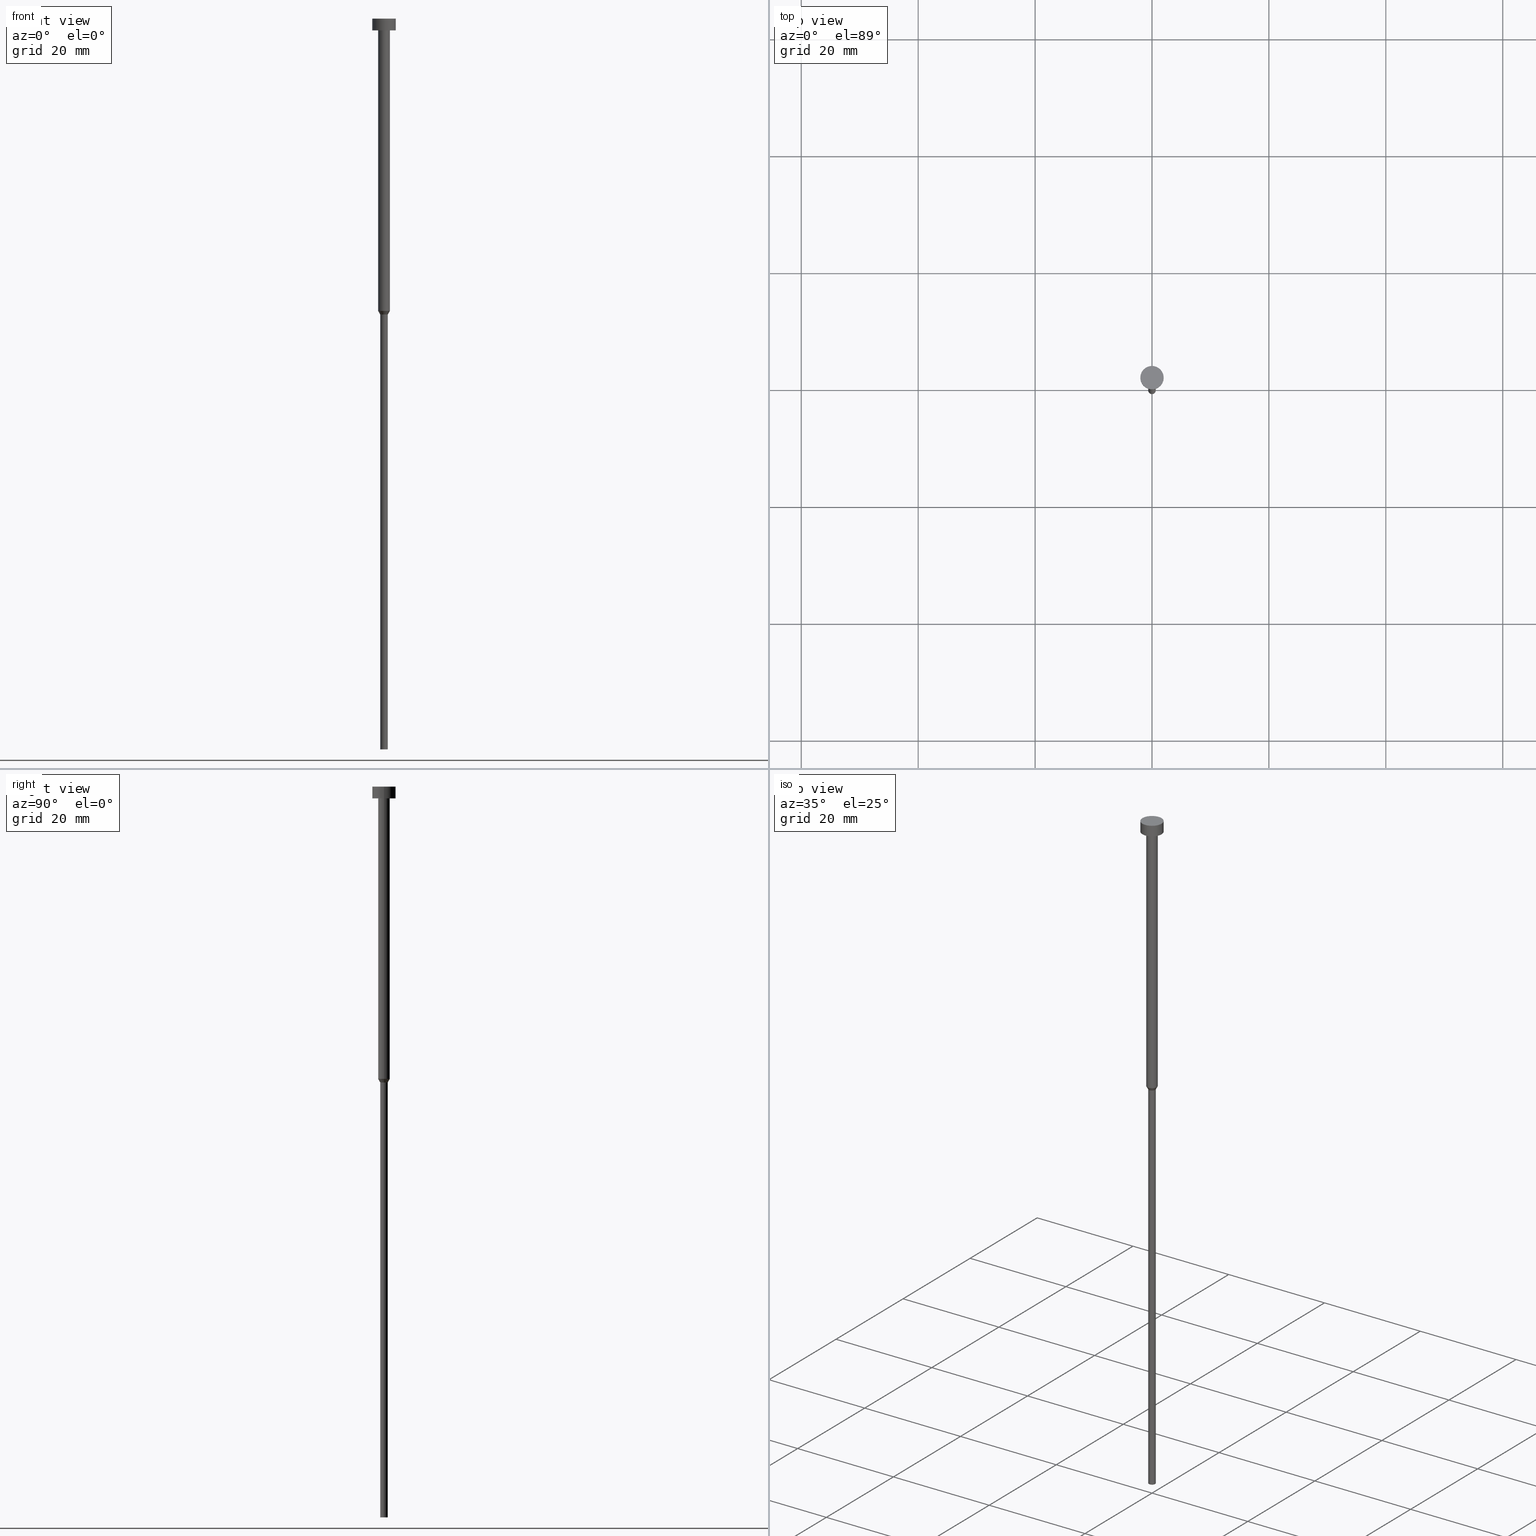
[diagram: canonical four-view strip — front | top / right | iso, engineering-drawing reading convention]
A machine part, canonical four-view strip (front | top / right | iso — engineering-drawing reading convention). The complete STEP part file that produces these views, byte-faithful:
ISO-10303-21;
HEADER;
FILE_DESCRIPTION (( 'STEP AP203' ),
    '1' );
FILE_NAME ('8b1c.STEP',
    '2023-02-13T11:52:31',
    ( '' ),
    ( '' ),
    'SwSTEP 2.0',
    'SolidWorks 2019',
    '' );
FILE_SCHEMA (( 'CONFIG_CONTROL_DESIGN' ));
ENDSEC;

DATA;
#1 = CARTESIAN_POINT ( 'NONE',  ( 0.000000000000000000, 0.000000000000000000, -50.00000000000000000 ) ) ;
#2 = ORIENTED_EDGE ( 'NONE', *, *, #255, .F. ) ;
#3 = ADVANCED_FACE ( 'NONE', ( #308 ), #192, .T. ) ;
#4 = DIRECTION ( 'NONE',  ( -0.000000000000000000, -0.000000000000000000, 1.000000000000000000 ) ) ;
#5 = ORIENTED_EDGE ( 'NONE', *, *, #187, .F. ) ;
#6 = APPROVAL_DATE_TIME ( #251, #317 ) ;
#7 = CARTESIAN_POINT ( 'NONE',  ( 0.000000000000000000, 0.000000000000000000, 0.000000000000000000 ) ) ;
#8 = CARTESIAN_POINT ( 'NONE',  ( 0.000000000000000000, 0.000000000000000000, -50.00000000000000000 ) ) ;
#9 = ORIENTED_EDGE ( 'NONE', *, *, #182, .T. ) ;
#10 = CIRCLE ( 'NONE', #241, 2.000000000000000000 ) ;
#11 = ADVANCED_FACE ( 'NONE', ( #107 ), #111, .T. ) ;
#12 = EDGE_LOOP ( 'NONE', ( #85, #35, #62, #310 ) ) ;
#13 = VECTOR ( 'NONE', #336, 1000.000000000000000 ) ;
#14 = DIRECTION ( 'NONE',  ( 1.000000000000000000, 0.000000000000000000, 0.000000000000000000 ) ) ;
#15 = CARTESIAN_POINT ( 'NONE',  ( 0.6500000000000000222, 0.000000000000000000, 0.000000000000000000 ) ) ;
#16 = CIRCLE ( 'NONE', #235, 0.6500000000000000222 ) ;
#17 = EDGE_CURVE ( 'NONE', #224, #86, #139, .T. ) ;
#18 = MECHANICAL_CONTEXT ( 'NONE', #302, 'mechanical' ) ;
#19 = DIRECTION ( 'NONE',  ( 1.000000000000000000, 0.000000000000000000, 0.000000000000000000 ) ) ;
#20 = DATE_AND_TIME ( #210, #330 ) ;
#21 = DIRECTION ( 'NONE',  ( 1.000000000000000000, 0.000000000000000000, 0.000000000000000000 ) ) ;
#22 = AXIS2_PLACEMENT_3D ( 'NONE', #1, #268, #94 ) ;
#23 = DIRECTION ( 'NONE',  ( 1.000000000000000000, 0.000000000000000000, 0.000000000000000000 ) ) ;
#24 = DIRECTION ( 'NONE',  ( -0.000000000000000000, -0.000000000000000000, 1.000000000000000000 ) ) ;
#25 = EDGE_CURVE ( 'NONE', #173, #57, #109, .T. ) ;
#26 = DIRECTION ( 'NONE',  ( -0.000000000000000000, -0.000000000000000000, 1.000000000000000000 ) ) ;
#27 = PERSON_AND_ORGANIZATION_ROLE ( 'design_supplier' ) ;
#28 = AXIS2_PLACEMENT_3D ( 'NONE', #244, #304, #78 ) ;
#29 = PERSON_AND_ORGANIZATION ( #342, #67 ) ;
#30 = UNCERTAINTY_MEASURE_WITH_UNIT (LENGTH_MEASURE( 1.000000000000000082E-05 ), #125, 'distance_accuracy_value', 'NONE');
#31 = ORIENTED_EDGE ( 'NONE', *, *, #36, .F. ) ;
#32 = PERSON_AND_ORGANIZATION ( #342, #67 ) ;
#33 = DIRECTION ( 'NONE',  ( 0.000000000000000000, 0.000000000000000000, -1.000000000000000000 ) ) ;
#34 = ORIENTED_EDGE ( 'NONE', *, *, #328, .T. ) ;
#35 = ORIENTED_EDGE ( 'NONE', *, *, #193, .T. ) ;
#36 = EDGE_CURVE ( 'NONE', #141, #224, #68, .T. ) ;
#37 = AXIS2_PLACEMENT_3D ( 'NONE', #189, #261, #21 ) ;
#38 = APPROVAL_PERSON_ORGANIZATION ( #29, #317, #222 ) ;
#39 = ORIENTED_EDGE ( 'NONE', *, *, #88, .T. ) ;
#40 = EDGE_LOOP ( 'NONE', ( #84, #114, #245, #124 ) ) ;
#41 = AXIS2_PLACEMENT_3D ( 'NONE', #8, #118, #42 ) ;
#42 = DIRECTION ( 'NONE',  ( 1.000000000000000000, 0.000000000000000000, 0.000000000000000000 ) ) ;
#43 = VECTOR ( 'NONE', #296, 1000.000000000000000 ) ;
#44 = EDGE_CURVE ( 'NONE', #137, #327, #77, .T. ) ;
#45 = CARTESIAN_POINT ( 'NONE',  ( 0.000000000000000000, 0.000000000000000000, -125.0000000000000000 ) ) ;
#46 = AXIS2_PLACEMENT_3D ( 'NONE', #72, #160, #321 ) ;
#47 = PERSON_AND_ORGANIZATION ( #342, #67 ) ;
#48 = DIRECTION ( 'NONE',  ( -0.000000000000000000, -0.000000000000000000, 1.000000000000000000 ) ) ;
#49 = CC_DESIGN_PERSON_AND_ORGANIZATION_ASSIGNMENT ( #135, #99, ( #303 ) ) ;
#50 = CARTESIAN_POINT ( 'NONE',  ( 1.000000000000003109, 0.000000000000000000, -50.00000000000000000 ) ) ;
#51 = PERSON_AND_ORGANIZATION_ROLE ( 'creator' ) ;
#52 = CARTESIAN_POINT ( 'NONE',  ( 2.000000000000000000, 0.000000000000000000, -2.449293598294705921E-16 ) ) ;
#53 = APPROVAL_ROLE ( '' ) ;
#54 = AXIS2_PLACEMENT_3D ( 'NONE', #45, #207, #14 ) ;
#55 = ORIENTED_EDGE ( 'NONE', *, *, #44, .T. ) ;
#56 = CARTESIAN_POINT ( 'NONE',  ( 0.000000000000000000, 0.000000000000000000, 0.000000000000000000 ) ) ;
#57 = VERTEX_POINT ( 'NONE', #177 ) ;
#58 = PLANE ( 'NONE',  #28 ) ;
#59 = EDGE_LOOP ( 'NONE', ( #90, #227, #175, #148 ) ) ;
#60 = CIRCLE ( 'NONE', #226, 1.000000000000003109 ) ;
#61 = FACE_OUTER_BOUND ( 'NONE', #82, .T. ) ;
#62 = ORIENTED_EDGE ( 'NONE', *, *, #88, .F. ) ;
#63 = CARTESIAN_POINT ( 'NONE',  ( 0.000000000000000000, 0.000000000000000000, -1.224646799147352961E-16 ) ) ;
#64 = DIRECTION ( 'NONE',  ( 1.000000000000000000, 0.000000000000000000, 0.000000000000000000 ) ) ;
#65 = ADVANCED_FACE ( 'NONE', ( #287 ), #289, .T. ) ;
#66 = CARTESIAN_POINT ( 'NONE',  ( 0.000000000000000000, 0.000000000000000000, -50.60621778264911086 ) ) ;
#67 = ORGANIZATION ( 'NEUR�EN�', 'NEUR�EN�', '' ) ;
#68 = LINE ( 'NONE', #15, #13 ) ;
#69 = DESIGN_CONTEXT ( 'detailed design', #278, 'design' ) ;
#70 = ADVANCED_FACE ( 'NONE', ( #155 ), #239, .T. ) ;
#71 = DIRECTION ( 'NONE',  ( 1.000000000000000000, 0.000000000000000000, 0.000000000000000000 ) ) ;
#72 = CARTESIAN_POINT ( 'NONE',  ( 0.000000000000000000, 0.000000000000000000, -2.000000000000000444 ) ) ;
#73 = APPROVAL_STATUS ( 'not_yet_approved' ) ;
#74 = FACE_OUTER_BOUND ( 'NONE', #59, .T. ) ;
#75 = EDGE_CURVE ( 'NONE', #332, #327, #340, .T. ) ;
#76 = COORDINATED_UNIVERSAL_TIME_OFFSET ( 1, 0, .AHEAD. ) ;
#77 = CIRCLE ( 'NONE', #297, 2.000000000000000000 ) ;
#78 = DIRECTION ( 'NONE',  ( -1.000000000000000000, 0.000000000000000000, -0.000000000000000000 ) ) ;
#79 = EDGE_LOOP ( 'NONE', ( #34, #9, #176, #31 ) ) ;
#80 = FACE_OUTER_BOUND ( 'NONE', #326, .T. ) ;
#81 = AXIS2_PLACEMENT_3D ( 'NONE', #212, #48, #232 ) ;
#82 = EDGE_LOOP ( 'NONE', ( #201, #168 ) ) ;
#83 = DIRECTION ( 'NONE',  ( -0.000000000000000000, -0.000000000000000000, 1.000000000000000000 ) ) ;
#84 = ORIENTED_EDGE ( 'NONE', *, *, #193, .F. ) ;
#85 = ORIENTED_EDGE ( 'NONE', *, *, #17, .T. ) ;
#86 = VERTEX_POINT ( 'NONE', #318 ) ;
#87 = CYLINDRICAL_SURFACE ( 'NONE', #325, 0.6500000000000000222 ) ;
#88 = EDGE_CURVE ( 'NONE', #57, #173, #60, .T. ) ;
#89 = APPROVAL_STATUS ( 'not_yet_approved' ) ;
#90 = ORIENTED_EDGE ( 'NONE', *, *, #187, .T. ) ;
#91 = CARTESIAN_POINT ( 'NONE',  ( 2.000000000000000000, 0.000000000000000000, -2.000000000000000444 ) ) ;
#92 = ORIENTED_EDGE ( 'NONE', *, *, #102, .T. ) ;
#93 = EDGE_CURVE ( 'NONE', #57, #350, #129, .T. ) ;
#94 = DIRECTION ( 'NONE',  ( 1.000000000000000000, 0.000000000000000000, 0.000000000000000000 ) ) ;
#95 = DIRECTION ( 'NONE',  ( -0.000000000000000000, -0.000000000000000000, 1.000000000000000000 ) ) ;
#96 = FACE_OUTER_BOUND ( 'NONE', #79, .T. ) ;
#97 = DIRECTION ( 'NONE',  ( 1.000000000000000000, 0.000000000000000000, 0.000000000000000000 ) ) ;
#98 = DIRECTION ( 'NONE',  ( 0.000000000000000000, 0.000000000000000000, 1.000000000000000000 ) ) ;
#99 = PERSON_AND_ORGANIZATION_ROLE ( 'creator' ) ;
#100 = CARTESIAN_POINT ( 'NONE',  ( -0.6500000000000000222, 7.960204194457795477E-17, -125.0000000000000000 ) ) ;
#101 = DIRECTION ( 'NONE',  ( -0.000000000000000000, -0.000000000000000000, 1.000000000000000000 ) ) ;
#102 = EDGE_CURVE ( 'NONE', #353, #137, #211, .T. ) ;
#103 = AXIS2_PLACEMENT_3D ( 'NONE', #56, #349, #142 ) ;
#104 = CARTESIAN_POINT ( 'NONE',  ( -1.000000000000003109, 1.224646799147356905E-16, -50.00000000000000000 ) ) ;
#105 = SECURITY_CLASSIFICATION ( '', '', #133 ) ;
#106 = DIRECTION ( 'NONE',  ( 1.000000000000000000, 0.000000000000000000, 0.000000000000000000 ) ) ;
#107 = FACE_OUTER_BOUND ( 'NONE', #301, .T. ) ;
#108 = APPROVAL_ROLE ( '' ) ;
#109 = CIRCLE ( 'NONE', #152, 1.000000000000003109 ) ;
#110 = CARTESIAN_POINT ( 'NONE',  ( 0.000000000000000000, 0.000000000000000000, -2.000000000000000444 ) ) ;
#111 = CYLINDRICAL_SURFACE ( 'NONE', #313, 1.000000000000003331 ) ;
#112 = APPROVAL_DATE_TIME ( #188, #276 ) ;
#113 = CARTESIAN_POINT ( 'NONE',  ( 0.000000000000000000, 0.000000000000000000, -2.449293598294705921E-16 ) ) ;
#114 = ORIENTED_EDGE ( 'NONE', *, *, #161, .T. ) ;
#115 = COORDINATED_UNIVERSAL_TIME_OFFSET ( 1, 0, .AHEAD. ) ;
#116 = VERTEX_POINT ( 'NONE', #100 ) ;
#117 = CARTESIAN_POINT ( 'NONE',  ( -1.000000000000003553, 1.224646799147357398E-16, -2.000000000000000444 ) ) ;
#118 = DIRECTION ( 'NONE',  ( -0.000000000000000000, -0.000000000000000000, 1.000000000000000000 ) ) ;
#119 = AXIS2_PLACEMENT_3D ( 'NONE', #110, #4, #171 ) ;
#120 = ADVANCED_BREP_SHAPE_REPRESENTATION ( '8b1c', ( #121, #254 ), #320 ) ;
#121 = MANIFOLD_SOLID_BREP ( 'Rotovat1', #351 ) ;
#122 = DIRECTION ( 'NONE',  ( -0.000000000000000000, -0.000000000000000000, 1.000000000000000000 ) ) ;
#123 = ORIENTED_EDGE ( 'NONE', *, *, #93, .F. ) ;
#124 = ORIENTED_EDGE ( 'NONE', *, *, #25, .F. ) ;
#125 =( LENGTH_UNIT ( ) NAMED_UNIT ( * ) SI_UNIT ( .MILLI., .METRE. ) );
#126 = CARTESIAN_POINT ( 'NONE',  ( 0.000000000000000000, 0.000000000000000000, 0.000000000000000000 ) ) ;
#127 =( NAMED_UNIT ( * ) SI_UNIT ( $, .STERADIAN. ) SOLID_ANGLE_UNIT ( ) );
#128 = CARTESIAN_POINT ( 'NONE',  ( 0.000000000000000000, 0.000000000000000000, 0.000000000000000000 ) ) ;
#129 = LINE ( 'NONE', #158, #286 ) ;
#130 = DIRECTION ( 'NONE',  ( 1.000000000000000000, 0.000000000000000000, 0.000000000000000000 ) ) ;
#131 = LINE ( 'NONE', #236, #228 ) ;
#132 = DIRECTION ( 'NONE',  ( -0.000000000000000000, -0.000000000000000000, 1.000000000000000000 ) ) ;
#133 = SECURITY_CLASSIFICATION_LEVEL ( 'unclassified' ) ;
#134 = CC_DESIGN_APPROVAL ( #237, ( #303 ) ) ;
#135 = PERSON_AND_ORGANIZATION ( #342, #67 ) ;
#136 = CARTESIAN_POINT ( 'NONE',  ( 0.6500000000000000222, 0.000000000000000000, -50.60621778264911086 ) ) ;
#137 = VERTEX_POINT ( 'NONE', #52 ) ;
#138 = COORDINATED_UNIVERSAL_TIME_OFFSET ( 1, 0, .AHEAD. ) ;
#139 = CIRCLE ( 'NONE', #164, 0.6500000000000000222 ) ;
#140 = DIRECTION ( 'NONE',  ( 1.000000000000000000, 0.000000000000000000, 0.000000000000000000 ) ) ;
#141 = VERTEX_POINT ( 'NONE', #292 ) ;
#142 = DIRECTION ( 'NONE',  ( 1.000000000000000000, 0.000000000000000000, 0.000000000000000000 ) ) ;
#143 = CIRCLE ( 'NONE', #46, 2.000000000000000000 ) ;
#144 = ORIENTED_EDGE ( 'NONE', *, *, #25, .T. ) ;
#145 = LOCAL_TIME ( 12, 52, 31.00000000000000000, #76 ) ;
#146 = LINE ( 'NONE', #194, #205 ) ;
#147 = ORIENTED_EDGE ( 'NONE', *, *, #283, .F. ) ;
#148 = ORIENTED_EDGE ( 'NONE', *, *, #102, .F. ) ;
#149 = CIRCLE ( 'NONE', #167, 0.6500000000000000222 ) ;
#150 = CC_DESIGN_APPROVAL ( #276, ( #183 ) ) ;
#151 = DIRECTION ( 'NONE',  ( -0.000000000000000000, -0.000000000000000000, 1.000000000000000000 ) ) ;
#152 = AXIS2_PLACEMENT_3D ( 'NONE', #178, #181, #284 ) ;
#153 = CONICAL_SURFACE ( 'NONE', #22, 1.000000000000003109, 0.5235987755982995928 ) ;
#154 = CALENDAR_DATE ( 2023, 13, 2 ) ;
#155 = FACE_OUTER_BOUND ( 'NONE', #40, .T. ) ;
#156 = EDGE_CURVE ( 'NONE', #350, #329, #269, .T. ) ;
#157 = PERSON_AND_ORGANIZATION_ROLE ( 'design_owner' ) ;
#158 = CARTESIAN_POINT ( 'NONE',  ( 1.000000000000003331, 0.000000000000000000, 0.000000000000000000 ) ) ;
#159 = CARTESIAN_POINT ( 'NONE',  ( 0.000000000000000000, 0.000000000000000000, -2.000000000000000444 ) ) ;
#160 = DIRECTION ( 'NONE',  ( -0.000000000000000000, -0.000000000000000000, 1.000000000000000000 ) ) ;
#161 = EDGE_CURVE ( 'NONE', #86, #224, #149, .T. ) ;
#162 = DIRECTION ( 'NONE',  ( -0.000000000000000000, -0.000000000000000000, 1.000000000000000000 ) ) ;
#163 = PERSON_AND_ORGANIZATION ( #342, #67 ) ;
#164 = AXIS2_PLACEMENT_3D ( 'NONE', #66, #95, #97 ) ;
#165 = CARTESIAN_POINT ( 'NONE',  ( 0.000000000000000000, 0.000000000000000000, -125.0000000000000000 ) ) ;
#166 = DATE_AND_TIME ( #190, #145 ) ;
#167 = AXIS2_PLACEMENT_3D ( 'NONE', #344, #24, #130 ) ;
#168 = ORIENTED_EDGE ( 'NONE', *, *, #208, .F. ) ;
#169 = ADVANCED_FACE ( 'NONE', ( #74 ), #184, .T. ) ;
#170 = ORIENTED_EDGE ( 'NONE', *, *, #75, .F. ) ;
#171 = DIRECTION ( 'NONE',  ( 1.000000000000000000, 0.000000000000000000, 0.000000000000000000 ) ) ;
#172 = CC_DESIGN_PERSON_AND_ORGANIZATION_ASSIGNMENT ( #346, #216, ( #105 ) ) ;
#173 = VERTEX_POINT ( 'NONE', #104 ) ;
#174 = DIRECTION ( 'NONE',  ( -1.000000000000000000, 0.000000000000000000, -0.000000000000000000 ) ) ;
#175 = ORIENTED_EDGE ( 'NONE', *, *, #44, .F. ) ;
#176 = ORIENTED_EDGE ( 'NONE', *, *, #17, .F. ) ;
#177 = CARTESIAN_POINT ( 'NONE',  ( 1.000000000000003109, 0.000000000000000000, -50.00000000000000000 ) ) ;
#178 = CARTESIAN_POINT ( 'NONE',  ( 0.000000000000000000, 0.000000000000000000, -50.00000000000000000 ) ) ;
#179 = LOCAL_TIME ( 12, 52, 31.00000000000000000, #115 ) ;
#180 = VECTOR ( 'NONE', #132, 1000.000000000000000 ) ;
#181 = DIRECTION ( 'NONE',  ( -0.000000000000000000, -0.000000000000000000, 1.000000000000000000 ) ) ;
#182 = EDGE_CURVE ( 'NONE', #116, #86, #234, .T. ) ;
#183 = PRODUCT_DEFINITION_FORMATION_WITH_SPECIFIED_SOURCE ( 'LIBOVOLN�', '', #186, .NOT_KNOWN. ) ;
#184 = CYLINDRICAL_SURFACE ( 'NONE', #81, 2.000000000000000000 ) ;
#185 = CARTESIAN_POINT ( 'NONE',  ( 0.000000000000000000, 0.000000000000000000, -50.00000000000000000 ) ) ;
#186 = PRODUCT ( '8b1c', '8b1c', '', ( #18 ) ) ;
#187 = EDGE_CURVE ( 'NONE', #353, #332, #10, .T. ) ;
#188 = DATE_AND_TIME ( #243, #280 ) ;
#189 = CARTESIAN_POINT ( 'NONE',  ( 0.000000000000000000, 0.000000000000000000, -2.000000000000000444 ) ) ;
#190 = CALENDAR_DATE ( 2023, 13, 2 ) ;
#191 = FACE_OUTER_BOUND ( 'NONE', #12, .T. ) ;
#192 = PLANE ( 'NONE',  #337 ) ;
#193 = EDGE_CURVE ( 'NONE', #86, #173, #131, .T. ) ;
#194 = CARTESIAN_POINT ( 'NONE',  ( -1.000000000000003331, 1.224646799147357151E-16, 0.000000000000000000 ) ) ;
#195 = ORIENTED_EDGE ( 'NONE', *, *, #93, .T. ) ;
#196 = DIRECTION ( 'NONE',  ( -0.000000000000000000, -0.000000000000000000, 1.000000000000000000 ) ) ;
#197 = ORIENTED_EDGE ( 'NONE', *, *, #199, .F. ) ;
#198 = CYLINDRICAL_SURFACE ( 'NONE', #355, 0.6500000000000000222 ) ;
#199 = EDGE_CURVE ( 'NONE', #332, #353, #143, .T. ) ;
#200 = ORIENTED_EDGE ( 'NONE', *, *, #208, .T. ) ;
#201 = ORIENTED_EDGE ( 'NONE', *, *, #328, .F. ) ;
#202 = DIRECTION ( 'NONE',  ( 1.000000000000000000, 0.000000000000000000, 0.000000000000000000 ) ) ;
#203 = SHAPE_DEFINITION_REPRESENTATION ( #215, #120 ) ;
#204 = EDGE_CURVE ( 'NONE', #224, #57, #265, .T. ) ;
#205 = VECTOR ( 'NONE', #196, 1000.000000000000000 ) ;
#206 = CC_DESIGN_DATE_AND_TIME_ASSIGNMENT ( #166, #270, ( #105 ) ) ;
#207 = DIRECTION ( 'NONE',  ( -0.000000000000000000, -0.000000000000000000, 1.000000000000000000 ) ) ;
#208 = EDGE_CURVE ( 'NONE', #116, #141, #16, .T. ) ;
#209 = PERSON_AND_ORGANIZATION ( #342, #67 ) ;
#210 = CALENDAR_DATE ( 2023, 13, 2 ) ;
#211 = LINE ( 'NONE', #240, #300 ) ;
#212 = CARTESIAN_POINT ( 'NONE',  ( 0.000000000000000000, 0.000000000000000000, 0.000000000000000000 ) ) ;
#213 = CIRCLE ( 'NONE', #54, 0.6500000000000000222 ) ;
#214 = CARTESIAN_POINT ( 'NONE',  ( -0.6500000000000000222, 7.960204194457795477E-17, 0.000000000000000000 ) ) ;
#215 = PRODUCT_DEFINITION_SHAPE ( 'NONE', 'NONE',  #303 ) ;
#216 = PERSON_AND_ORGANIZATION_ROLE ( 'classification_officer' ) ;
#217 = PLANE ( 'NONE',  #290 ) ;
#218 = EDGE_CURVE ( 'NONE', #327, #137, #279, .T. ) ;
#219 = ORIENTED_EDGE ( 'NONE', *, *, #255, .T. ) ;
#220 = COORDINATED_UNIVERSAL_TIME_OFFSET ( 1, 0, .AHEAD. ) ;
#221 = EDGE_LOOP ( 'NONE', ( #170, #250, #92, #274 ) ) ;
#222 = APPROVAL_ROLE ( '' ) ;
#223 = ORIENTED_EDGE ( 'NONE', *, *, #36, .T. ) ;
#224 = VERTEX_POINT ( 'NONE', #136 ) ;
#225 = CALENDAR_DATE ( 2023, 13, 2 ) ;
#226 = AXIS2_PLACEMENT_3D ( 'NONE', #185, #291, #238 ) ;
#227 = ORIENTED_EDGE ( 'NONE', *, *, #75, .T. ) ;
#228 = VECTOR ( 'NONE', #341, 1000.000000000000000 ) ;
#229 = DIRECTION ( 'NONE',  ( -0.000000000000000000, -0.000000000000000000, 1.000000000000000000 ) ) ;
#230 = ORIENTED_EDGE ( 'NONE', *, *, #218, .T. ) ;
#231 = ADVANCED_FACE ( 'NONE', ( #80 ), #198, .T. ) ;
#232 = DIRECTION ( 'NONE',  ( 1.000000000000000000, 0.000000000000000000, 0.000000000000000000 ) ) ;
#233 = CARTESIAN_POINT ( 'NONE',  ( 0.000000000000000000, 0.000000000000000000, 0.000000000000000000 ) ) ;
#234 = LINE ( 'NONE', #214, #293 ) ;
#235 = AXIS2_PLACEMENT_3D ( 'NONE', #260, #162, #19 ) ;
#236 = CARTESIAN_POINT ( 'NONE',  ( -1.000000000000003109, 1.224646799147356905E-16, -50.00000000000000000 ) ) ;
#237 = APPROVAL ( #348, 'NEUR�EN�' ) ;
#238 = DIRECTION ( 'NONE',  ( 1.000000000000000000, 0.000000000000000000, 0.000000000000000000 ) ) ;
#239 = CONICAL_SURFACE ( 'NONE', #41, 1.000000000000003109, 0.5235987755982995928 ) ;
#240 = CARTESIAN_POINT ( 'NONE',  ( 2.000000000000000000, 0.000000000000000000, 0.000000000000000000 ) ) ;
#241 = AXIS2_PLACEMENT_3D ( 'NONE', #159, #262, #23 ) ;
#242 = EDGE_LOOP ( 'NONE', ( #5, #197 ) ) ;
#243 = CALENDAR_DATE ( 2023, 13, 2 ) ;
#244 = CARTESIAN_POINT ( 'NONE',  ( 0.000000000000000000, -2.000000000000000000, -2.000000000000000444 ) ) ;
#245 = ORIENTED_EDGE ( 'NONE', *, *, #204, .T. ) ;
#246 = CIRCLE ( 'NONE', #119, 1.000000000000003553 ) ;
#247 = ORIENTED_EDGE ( 'NONE', *, *, #156, .T. ) ;
#248 = ADVANCED_FACE ( 'NONE', ( #61 ), #217, .T. ) ;
#249 = FACE_OUTER_BOUND ( 'NONE', #277, .T. ) ;
#250 = ORIENTED_EDGE ( 'NONE', *, *, #199, .T. ) ;
#251 = DATE_AND_TIME ( #225, #179 ) ;
#252 = CARTESIAN_POINT ( 'NONE',  ( -2.000000000000000000, 2.449293598294706414E-16, -2.449293598294705921E-16 ) ) ;
#253 = DIRECTION ( 'NONE',  ( 1.000000000000000000, 0.000000000000000000, 0.000000000000000000 ) ) ;
#254 = AXIS2_PLACEMENT_3D ( 'NONE', #233, #98, #298 ) ;
#255 = EDGE_CURVE ( 'NONE', #173, #329, #146, .T. ) ;
#256 = ADVANCED_FACE ( 'NONE', ( #249 ), #271, .T. ) ;
#257 = CARTESIAN_POINT ( 'NONE',  ( -2.000000000000000000, 2.449293598294706414E-16, -2.000000000000000444 ) ) ;
#258 = CARTESIAN_POINT ( 'NONE',  ( 0.000000000000000000, 0.000000000000000000, -2.449293598294705921E-16 ) ) ;
#259 = APPROVAL_DATE_TIME ( #273, #237 ) ;
#260 = CARTESIAN_POINT ( 'NONE',  ( 0.000000000000000000, 0.000000000000000000, -125.0000000000000000 ) ) ;
#261 = DIRECTION ( 'NONE',  ( -0.000000000000000000, -0.000000000000000000, 1.000000000000000000 ) ) ;
#262 = DIRECTION ( 'NONE',  ( -0.000000000000000000, -0.000000000000000000, 1.000000000000000000 ) ) ;
#263 = APPROVAL_PERSON_ORGANIZATION ( #47, #237, #108 ) ;
#264 = CC_DESIGN_APPROVAL ( #317, ( #105 ) ) ;
#265 = LINE ( 'NONE', #50, #43 ) ;
#266 = CARTESIAN_POINT ( 'NONE',  ( -2.000000000000000000, 2.449293598294706414E-16, 0.000000000000000000 ) ) ;
#267 = ADVANCED_FACE ( 'NONE', ( #322, #324 ), #58, .T. ) ;
#268 = DIRECTION ( 'NONE',  ( -0.000000000000000000, -0.000000000000000000, 1.000000000000000000 ) ) ;
#269 = CIRCLE ( 'NONE', #37, 1.000000000000003553 ) ;
#270 = DATE_TIME_ROLE ( 'classification_date' ) ;
#271 = CYLINDRICAL_SURFACE ( 'NONE', #103, 1.000000000000003331 ) ;
#272 = ORIENTED_EDGE ( 'NONE', *, *, #161, .F. ) ;
#273 = DATE_AND_TIME ( #154, #345 ) ;
#274 = ORIENTED_EDGE ( 'NONE', *, *, #218, .F. ) ;
#275 = CARTESIAN_POINT ( 'NONE',  ( 0.000000000000000000, 0.000000000000000000, 0.000000000000000000 ) ) ;
#276 = APPROVAL ( #73, 'NEUR�EN�' ) ;
#277 = EDGE_LOOP ( 'NONE', ( #39, #219, #306, #123 ) ) ;
#278 = APPLICATION_CONTEXT ( 'configuration controlled 3d designs of mechanical parts and assemblies' ) ;
#279 = CIRCLE ( 'NONE', #307, 2.000000000000000000 ) ;
#280 = LOCAL_TIME ( 12, 52, 31.00000000000000000, #138 ) ;
#281 = EDGE_LOOP ( 'NONE', ( #55, #230 ) ) ;
#282 = DIRECTION ( 'NONE',  ( 0.000000000000000000, -0.000000000000000000, 1.000000000000000000 ) ) ;
#283 = EDGE_CURVE ( 'NONE', #329, #350, #246, .T. ) ;
#284 = DIRECTION ( 'NONE',  ( 1.000000000000000000, 0.000000000000000000, 0.000000000000000000 ) ) ;
#285 = APPROVAL_PERSON_ORGANIZATION ( #32, #276, #53 ) ;
#286 = VECTOR ( 'NONE', #315, 1000.000000000000000 ) ;
#287 = FACE_OUTER_BOUND ( 'NONE', #221, .T. ) ;
#288 = COORDINATED_UNIVERSAL_TIME_OFFSET ( 1, 0, .AHEAD. ) ;
#289 = CYLINDRICAL_SURFACE ( 'NONE', #343, 2.000000000000000000 ) ;
#290 = AXIS2_PLACEMENT_3D ( 'NONE', #165, #33, #174 ) ;
#291 = DIRECTION ( 'NONE',  ( -0.000000000000000000, -0.000000000000000000, 1.000000000000000000 ) ) ;
#292 = CARTESIAN_POINT ( 'NONE',  ( 0.6500000000000000222, 0.000000000000000000, -125.0000000000000000 ) ) ;
#293 = VECTOR ( 'NONE', #26, 1000.000000000000000 ) ;
#294 = CC_DESIGN_SECURITY_CLASSIFICATION ( #105, ( #183 ) ) ;
#295 = PERSON_AND_ORGANIZATION ( #342, #67 ) ;
#296 = DIRECTION ( 'NONE',  ( 0.5000000000000006661, 0.000000000000000000, 0.8660254037844382635 ) ) ;
#297 = AXIS2_PLACEMENT_3D ( 'NONE', #258, #229, #64 ) ;
#298 = DIRECTION ( 'NONE',  ( 1.000000000000000000, 0.000000000000000000, 0.000000000000000000 ) ) ;
#299 = ORIENTED_EDGE ( 'NONE', *, *, #182, .F. ) ;
#300 = VECTOR ( 'NONE', #101, 1000.000000000000000 ) ;
#301 = EDGE_LOOP ( 'NONE', ( #2, #144, #195, #147 ) ) ;
#302 = APPLICATION_CONTEXT ( 'configuration controlled 3d designs of mechanical parts and assemblies' ) ;
#303 = PRODUCT_DEFINITION ( 'NEZN�M�', '', #183, #69 ) ;
#304 = DIRECTION ( 'NONE',  ( 0.000000000000000000, 0.000000000000000000, -1.000000000000000000 ) ) ;
#305 = ORIENTED_EDGE ( 'NONE', *, *, #283, .T. ) ;
#306 = ORIENTED_EDGE ( 'NONE', *, *, #156, .F. ) ;
#307 = AXIS2_PLACEMENT_3D ( 'NONE', #113, #83, #140 ) ;
#308 = FACE_OUTER_BOUND ( 'NONE', #281, .T. ) ;
#309 = CC_DESIGN_PERSON_AND_ORGANIZATION_ASSIGNMENT ( #209, #157, ( #186 ) ) ;
#310 = ORIENTED_EDGE ( 'NONE', *, *, #204, .F. ) ;
#311 =( NAMED_UNIT ( * ) PLANE_ANGLE_UNIT ( ) SI_UNIT ( $, .RADIAN. ) );
#312 = ADVANCED_FACE ( 'NONE', ( #191 ), #153, .T. ) ;
#313 = AXIS2_PLACEMENT_3D ( 'NONE', #126, #151, #334 ) ;
#314 = DIRECTION ( 'NONE',  ( -0.000000000000000000, -0.000000000000000000, 1.000000000000000000 ) ) ;
#315 = DIRECTION ( 'NONE',  ( -0.000000000000000000, -0.000000000000000000, 1.000000000000000000 ) ) ;
#316 = DATE_TIME_ROLE ( 'creation_date' ) ;
#317 = APPROVAL ( #89, 'NEUR�EN�' ) ;
#318 = CARTESIAN_POINT ( 'NONE',  ( -0.6500000000000000222, 7.960204194457795477E-17, -50.60621778264911086 ) ) ;
#319 = CC_DESIGN_PERSON_AND_ORGANIZATION_ASSIGNMENT ( #295, #51, ( #183 ) ) ;
#320 =( GEOMETRIC_REPRESENTATION_CONTEXT ( 3 ) GLOBAL_UNCERTAINTY_ASSIGNED_CONTEXT ( ( #30 ) ) GLOBAL_UNIT_ASSIGNED_CONTEXT ( ( #125, #311, #127 ) ) REPRESENTATION_CONTEXT ( 'NONE', 'WORKASPACE' ) );
#321 = DIRECTION ( 'NONE',  ( 1.000000000000000000, 0.000000000000000000, 0.000000000000000000 ) ) ;
#322 = FACE_BOUND ( 'NONE', #323, .T. ) ;
#323 = EDGE_LOOP ( 'NONE', ( #247, #305 ) ) ;
#324 = FACE_OUTER_BOUND ( 'NONE', #242, .T. ) ;
#325 = AXIS2_PLACEMENT_3D ( 'NONE', #7, #122, #202 ) ;
#326 = EDGE_LOOP ( 'NONE', ( #299, #200, #223, #272 ) ) ;
#327 = VERTEX_POINT ( 'NONE', #252 ) ;
#328 = EDGE_CURVE ( 'NONE', #141, #116, #213, .T. ) ;
#329 = VERTEX_POINT ( 'NONE', #117 ) ;
#330 = LOCAL_TIME ( 12, 52, 31.00000000000000000, #288 ) ;
#331 = PRODUCT_RELATED_PRODUCT_CATEGORY ( 'detail', '', ( #186 ) ) ;
#332 = VERTEX_POINT ( 'NONE', #257 ) ;
#333 = CARTESIAN_POINT ( 'NONE',  ( 1.000000000000003553, 0.000000000000000000, -2.000000000000000444 ) ) ;
#334 = DIRECTION ( 'NONE',  ( 1.000000000000000000, 0.000000000000000000, 0.000000000000000000 ) ) ;
#335 = CC_DESIGN_DATE_AND_TIME_ASSIGNMENT ( #20, #316, ( #303 ) ) ;
#336 = DIRECTION ( 'NONE',  ( -0.000000000000000000, -0.000000000000000000, 1.000000000000000000 ) ) ;
#337 = AXIS2_PLACEMENT_3D ( 'NONE', #63, #282, #253 ) ;
#338 = ADVANCED_FACE ( 'NONE', ( #96 ), #87, .T. ) ;
#339 = APPLICATION_PROTOCOL_DEFINITION ( 'international standard', 'config_control_design', 1994, #278 ) ;
#340 = LINE ( 'NONE', #266, #180 ) ;
#341 = DIRECTION ( 'NONE',  ( -0.5000000000000006661, 6.123233995736774664E-17, 0.8660254037844382635 ) ) ;
#342 = PERSON ( 'NEUR�EN�', 'NEUR�EN�', 'NEUR�EN�', ('NEUR�EN�'), ('NEUR�EN�'), ('NEUR�EN�') ) ;
#343 = AXIS2_PLACEMENT_3D ( 'NONE', #128, #314, #71 ) ;
#344 = CARTESIAN_POINT ( 'NONE',  ( 0.000000000000000000, 0.000000000000000000, -50.60621778264911086 ) ) ;
#345 = LOCAL_TIME ( 12, 52, 31.00000000000000000, #220 ) ;
#346 = PERSON_AND_ORGANIZATION ( #342, #67 ) ;
#347 = DIRECTION ( 'NONE',  ( -0.000000000000000000, -0.000000000000000000, 1.000000000000000000 ) ) ;
#348 = APPROVAL_STATUS ( 'not_yet_approved' ) ;
#349 = DIRECTION ( 'NONE',  ( -0.000000000000000000, -0.000000000000000000, 1.000000000000000000 ) ) ;
#350 = VERTEX_POINT ( 'NONE', #333 ) ;
#351 = CLOSED_SHELL ( 'NONE', ( #169, #256, #312, #338, #248, #231, #70, #11, #267, #65, #3 ) ) ;
#352 = APPLICATION_PROTOCOL_DEFINITION ( 'international standard', 'config_control_design', 1994, #302 ) ;
#353 = VERTEX_POINT ( 'NONE', #91 ) ;
#354 = CC_DESIGN_PERSON_AND_ORGANIZATION_ASSIGNMENT ( #163, #27, ( #183 ) ) ;
#355 = AXIS2_PLACEMENT_3D ( 'NONE', #275, #347, #106 ) ;
ENDSEC;
END-ISO-10303-21;
